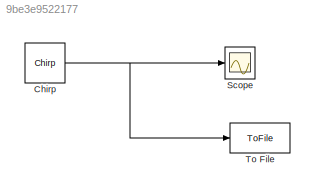
MODEL slx_9be3e9522177
KIND model
BLOCK [Reference] Chirp  REF=dspsrcs4/Chirp
  Ports = [0, 1]
  SourceBlock = dspsrcs4/Chirp
  SourceType = Chirp
  Ts = 1/4096
  Tsweep = 10
  datatype = Double
  f0 = 0
  f1 = 25
  mode = Unidirectional
  phase = 0
  spf = 400
  sweep = Linear
  t1 = 10
BLOCK [Scope] Scope
  Floating = off
  MaxDataPoints = 50000
  NumInputPorts = 1
  Ports = [1]
  ShowLegends = off
BLOCK [ToFile] To File
  Filename = chirp.mat
  Ports = [1]
NET Chirp:1 -> Scope:1, To File:1
note: NET lines group one-source signal fan-out (src -> all destinations, sorted); 1:1 wires keep LINE
